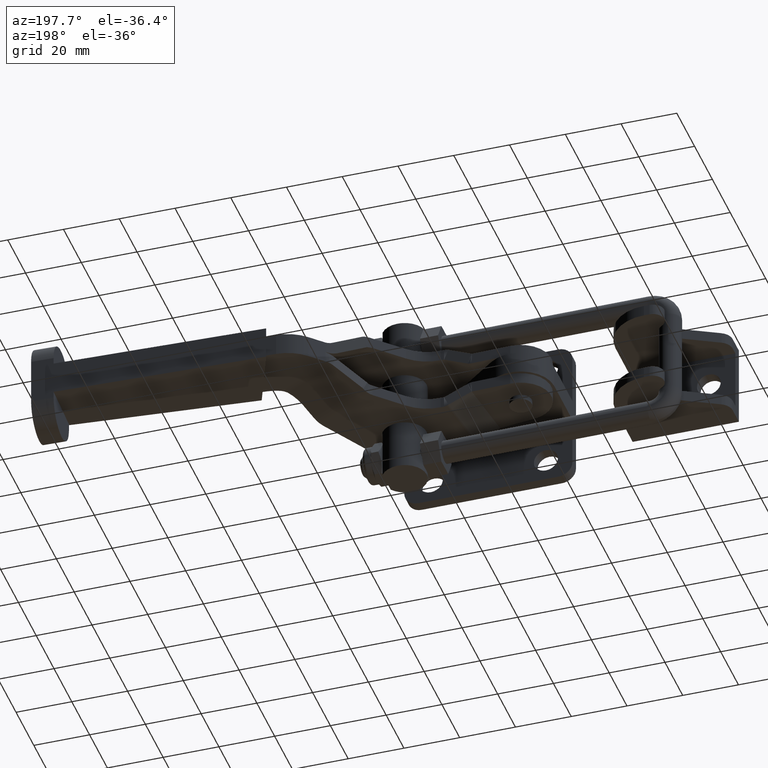
[diagram: clean part render]
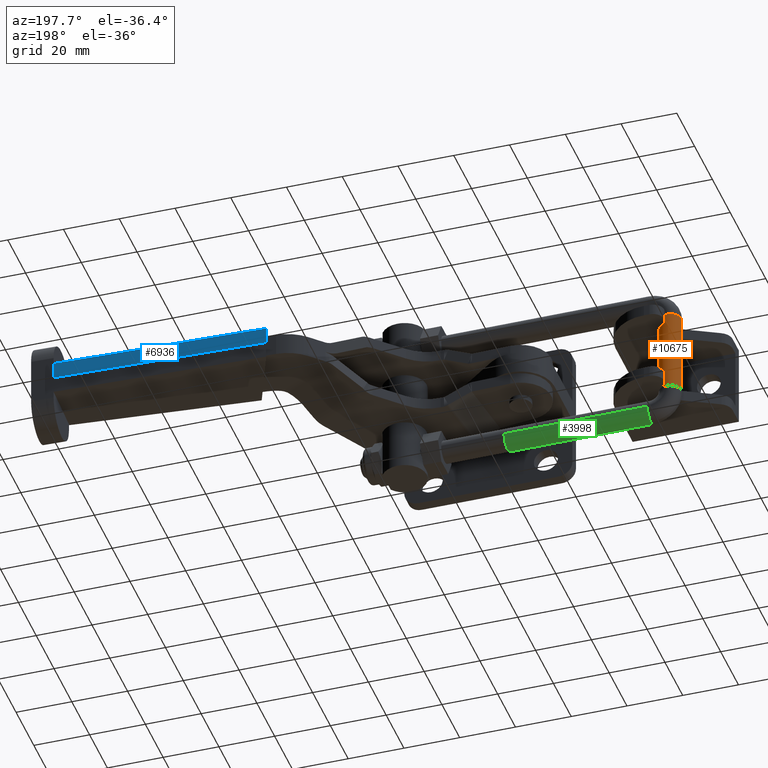
[diagram: same view with three faces highlighted in distinct colors, each labeled with its STEP entity id]
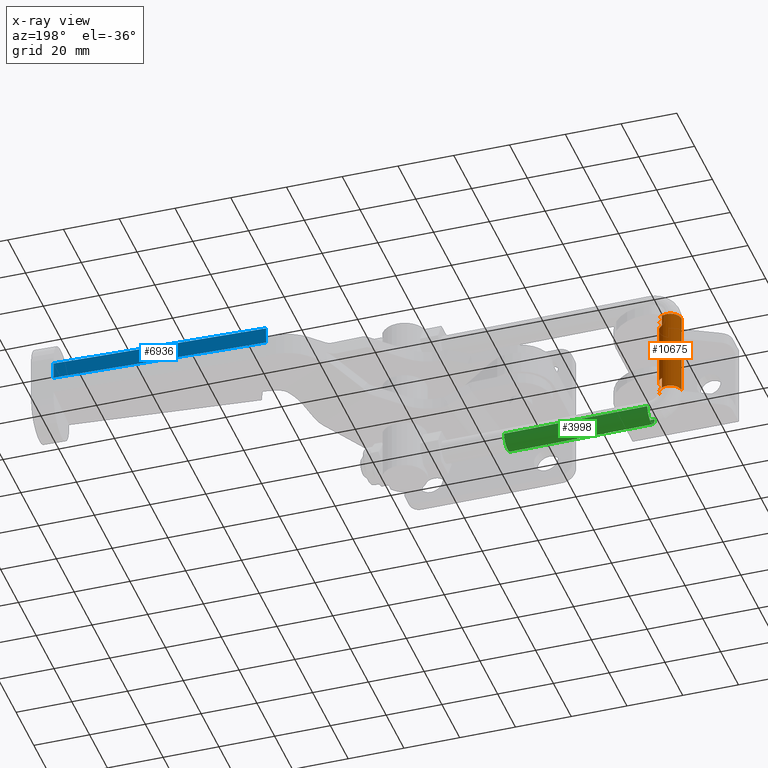
[diagram: x-ray of the same camera — body ghosted, the three highlighted faces saturated]
A machine part, auxiliary view with three faces highlighted in distinct colors.
The next image is the same camera in x-ray (body ghosted, the three faces saturated) — at least one of them is partly hidden behind the body in this view.
Their STEP definitions:

[orange] entity #10675 — the highlighted cylindrical surface (edge-blend (fillet) strip) has radius 4 mm, axis along (-0, 0, -1).
#129 = AXIS2_PLACEMENT_3D ( 'NONE', #6825, #1714, #7698 ) ;
#419 = CARTESIAN_POINT ( 'NONE',  ( -37.34735007127072500, 23.33114463887526600, -15.10000000000000000 ) ) ;
#1223 = VERTEX_POINT ( 'NONE', #10134 ) ;
#1245 = AXIS2_PLACEMENT_3D ( 'NONE', #9506, #4336, #10387 ) ;
#1280 = CARTESIAN_POINT ( 'NONE',  ( -45.34726118961603400, 23.36885536112467000, -15.24999999999999500 ) ) ;
#1493 = CARTESIAN_POINT ( 'NONE',  ( -37.34735007127056900, 23.33114463887526600, 15.25000000000001200 ) ) ;
#1507 = CIRCLE ( 'NONE', #2867, 4.000000000000003600 ) ;
#1682 = CARTESIAN_POINT ( 'NONE',  ( -37.34735007127072500, 23.33114463887526600, -11.10000000000000100 ) ) ;
#1714 = DIRECTION ( 'NONE',  ( 9.492765034231074300E-016, -6.755866105874848700E-018, 1.000000000000000000 ) ) ;
#1910 = VECTOR ( 'NONE', #10227, 1000.000000000000000 ) ;
#1942 = DIRECTION ( 'NONE',  ( 1.222089682935848900E-032, 9.802522302627077600E-017, 1.000000000000000000 ) ) ;
#2062 = CARTESIAN_POINT ( 'NONE',  ( -41.34730563044346500, 23.34999999999999800, -15.10000000000000000 ) ) ;
#2127 = DIRECTION ( 'NONE',  ( -0.0000000000000000000, -0.0000000000000000000, -1.000000000000000000 ) ) ;
#2140 = CARTESIAN_POINT ( 'NONE',  ( -37.34735007127056900, 23.33114463887526600, 15.25000000000001200 ) ) ;
#2198 = ORIENTED_EDGE ( 'NONE', *, *, #5491, .F. ) ;
#2284 = EDGE_CURVE ( 'NONE', #7064, #10743, #7619, .T. ) ;
#2331 = DIRECTION ( 'NONE',  ( -2.831406573256059800E-017, 2.414548036698167000E-018, -1.000000000000000000 ) ) ;
#2442 = CARTESIAN_POINT ( 'NONE',  ( -45.34726118961603400, 23.36885536112467000, 15.25000000000001600 ) ) ;
#2529 = CARTESIAN_POINT ( 'NONE',  ( -37.34735007127056900, 23.33114463887526600, 15.25000000000000900 ) ) ;
#2530 = FACE_OUTER_BOUND ( 'NONE', #6085, .T. ) ;
#2833 = ORIENTED_EDGE ( 'NONE', *, *, #3964, .T. ) ;
#2858 = CARTESIAN_POINT ( 'NONE',  ( -41.34730563044330200, 23.34999999999996900, 15.25000000000001200 ) ) ;
#2866 = CARTESIAN_POINT ( 'NONE',  ( -45.34726118961603400, 23.36885536112467000, 15.25000000000001200 ) ) ;
#2867 = AXIS2_PLACEMENT_3D ( 'NONE', #2062, #8052, #2902 ) ;
#2870 = VECTOR ( 'NONE', #9869, 1000.000000000000000 ) ;
#2902 = DIRECTION ( 'NONE',  ( 1.000000000000000000, 0.0000000000000000000, 0.0000000000000000000 ) ) ;
#2999 = EDGE_CURVE ( 'NONE', #7756, #1223, #6787, .T. ) ;
#3146 = AXIS2_PLACEMENT_3D ( 'NONE', #2858, #8887, #6313 ) ;
#3223 = VERTEX_POINT ( 'NONE', #7805 ) ;
#3662 = LINE ( 'NONE', #7261, #8228 ) ;
#3964 = EDGE_CURVE ( 'NONE', #4927, #7838, #7709, .T. ) ;
#4053 = CARTESIAN_POINT ( 'NONE',  ( -41.34730563044346500, 23.34999999999999800, 11.09999999999999800 ) ) ;
#4088 = DIRECTION ( 'NONE',  ( 9.492765034231074300E-016, -6.755866105874848700E-018, 1.000000000000000000 ) ) ;
#4184 = ORIENTED_EDGE ( 'NONE', *, *, #10252, .T. ) ;
#4239 = ORIENTED_EDGE ( 'NONE', *, *, #8446, .T. ) ;
#4243 = VECTOR ( 'NONE', #5260, 1000.000000000000000 ) ;
#4336 = DIRECTION ( 'NONE',  ( -0.0000000000000000000, -0.0000000000000000000, -1.000000000000000000 ) ) ;
#4381 = CARTESIAN_POINT ( 'NONE',  ( -39.32392135815571500, 26.80049504950501000, 15.10000000000000000 ) ) ;
#4433 = AXIS2_PLACEMENT_3D ( 'NONE', #7060, #1942, #7924 ) ;
#4528 = CYLINDRICAL_SURFACE ( 'NONE', #3146, 4.000000000000001800 ) ;
#4690 = EDGE_CURVE ( 'NONE', #3223, #4917, #3662, .T. ) ;
#4722 = CIRCLE ( 'NONE', #129, 4.000000000000001800 ) ;
#4895 = ORIENTED_EDGE ( 'NONE', *, *, #9237, .T. ) ;
#4917 = VERTEX_POINT ( 'NONE', #10256 ) ;
#4923 = DIRECTION ( 'NONE',  ( -1.734723475976807100E-015, -1.000000000000000000, 0.0000000000000000000 ) ) ;
#4927 = VERTEX_POINT ( 'NONE', #2529 ) ;
#5046 = ORIENTED_EDGE ( 'NONE', *, *, #4690, .T. ) ;
#5260 = DIRECTION ( 'NONE',  ( -0.0000000000000000000, -0.0000000000000000000, -1.000000000000000000 ) ) ;
#5334 = ORIENTED_EDGE ( 'NONE', *, *, #5415, .F. ) ;
#5415 = EDGE_CURVE ( 'NONE', #4927, #7064, #4722, .T. ) ;
#5491 = EDGE_CURVE ( 'NONE', #3223, #7838, #6190, .T. ) ;
#5928 = EDGE_CURVE ( 'NONE', #8933, #7120, #11032, .T. ) ;
#6085 = EDGE_LOOP ( 'NONE', ( #10229, #5334, #2833, #2198, #5046, #4184, #8391, #4895, #10612, #9618, #8290, #4239 ) ) ;
#6190 = CIRCLE ( 'NONE', #1245, 4.000000000000003600 ) ;
#6207 = EDGE_CURVE ( 'NONE', #6603, #7756, #1507, .T. ) ;
#6313 = DIRECTION ( 'NONE',  ( 0.9999888897931834600, -0.004713840281175307400, 0.0000000000000000000 ) ) ;
#6513 = LINE ( 'NONE', #4381, #4243 ) ;
#6555 = VERTEX_POINT ( 'NONE', #7669 ) ;
#6603 = VERTEX_POINT ( 'NONE', #8656 ) ;
#6772 = CARTESIAN_POINT ( 'NONE',  ( -37.34735007127056900, 23.33114463887526600, 15.25000000000001200 ) ) ;
#6787 = LINE ( 'NONE', #1493, #8820 ) ;
#6825 = CARTESIAN_POINT ( 'NONE',  ( -41.34730563044330200, 23.34999999999996900, 15.25000000000001200 ) ) ;
#7060 = CARTESIAN_POINT ( 'NONE',  ( -41.34730563044346500, 23.34999999999999800, -11.10000000000000100 ) ) ;
#7064 = VERTEX_POINT ( 'NONE', #2442 ) ;
#7120 = VERTEX_POINT ( 'NONE', #1682 ) ;
#7132 = CIRCLE ( 'NONE', #9760, 4.000000000000001800 ) ;
#7261 = CARTESIAN_POINT ( 'NONE',  ( -39.32392135815571500, 26.80049504950501000, 15.10000000000000000 ) ) ;
#7619 = LINE ( 'NONE', #2866, #8842 ) ;
#7669 = CARTESIAN_POINT ( 'NONE',  ( -39.32392135815565800, 26.80049504950497400, -11.10000000000000000 ) ) ;
#7698 = DIRECTION ( 'NONE',  ( 0.004713840281174440000, 0.9999888897931834600, 0.0000000000000000000 ) ) ;
#7709 = LINE ( 'NONE', #2140, #2870 ) ;
#7754 = CIRCLE ( 'NONE', #9341, 4.000000000000000000 ) ;
#7756 = VERTEX_POINT ( 'NONE', #419 ) ;
#7805 = CARTESIAN_POINT ( 'NONE',  ( -39.32392135815571500, 26.80049504950501000, 15.10000000000000000 ) ) ;
#7838 = VERTEX_POINT ( 'NONE', #9057 ) ;
#7924 = DIRECTION ( 'NONE',  ( 0.0000000000000000000, 1.000000000000000000, 0.0000000000000000000 ) ) ;
#8013 = DIRECTION ( 'NONE',  ( -2.831406573256059800E-017, 2.414548036698167000E-018, -1.000000000000000000 ) ) ;
#8052 = DIRECTION ( 'NONE',  ( -0.0000000000000000000, -0.0000000000000000000, -1.000000000000000000 ) ) ;
#8228 = VECTOR ( 'NONE', #2127, 1000.000000000000000 ) ;
#8290 = ORIENTED_EDGE ( 'NONE', *, *, #2999, .T. ) ;
#8391 = ORIENTED_EDGE ( 'NONE', *, *, #5928, .T. ) ;
#8446 = EDGE_CURVE ( 'NONE', #1223, #10743, #7132, .T. ) ;
#8656 = CARTESIAN_POINT ( 'NONE',  ( -39.32392135815571500, 26.80049504950501000, -15.10000000000000000 ) ) ;
#8820 = VECTOR ( 'NONE', #2331, 1000.000000000000000 ) ;
#8842 = VECTOR ( 'NONE', #8013, 1000.000000000000000 ) ;
#8887 = DIRECTION ( 'NONE',  ( -2.831406573256059800E-017, 2.414548036698167000E-018, -1.000000000000000000 ) ) ;
#8933 = VERTEX_POINT ( 'NONE', #10804 ) ;
#9057 = CARTESIAN_POINT ( 'NONE',  ( -37.34735007127072500, 23.33114463887526600, 15.10000000000000000 ) ) ;
#9123 = CIRCLE ( 'NONE', #4433, 4.000000000000000000 ) ;
#9237 = EDGE_CURVE ( 'NONE', #7120, #6555, #9123, .T. ) ;
#9263 = CARTESIAN_POINT ( 'NONE',  ( -41.34730563044330200, 23.34999999999996900, -15.24999999999999800 ) ) ;
#9341 = AXIS2_PLACEMENT_3D ( 'NONE', #4053, #10098, #4923 ) ;
#9506 = CARTESIAN_POINT ( 'NONE',  ( -41.34730563044346500, 23.34999999999999800, 15.10000000000000000 ) ) ;
#9618 = ORIENTED_EDGE ( 'NONE', *, *, #6207, .T. ) ;
#9760 = AXIS2_PLACEMENT_3D ( 'NONE', #9263, #4088, #10142 ) ;
#9869 = DIRECTION ( 'NONE',  ( -2.831406573256059800E-017, 2.414548036698167000E-018, -1.000000000000000000 ) ) ;
#10098 = DIRECTION ( 'NONE',  ( 1.222089682935848900E-032, 9.802522302627077600E-017, -1.000000000000000000 ) ) ;
#10134 = CARTESIAN_POINT ( 'NONE',  ( -37.34735007127056900, 23.33114463887526600, -15.25000000000000200 ) ) ;
#10142 = DIRECTION ( 'NONE',  ( 0.004713840281174440000, 0.9999888897931834600, 0.0000000000000000000 ) ) ;
#10227 = DIRECTION ( 'NONE',  ( -2.831406573256059800E-017, 2.414548036698167000E-018, -1.000000000000000000 ) ) ;
#10229 = ORIENTED_EDGE ( 'NONE', *, *, #2284, .F. ) ;
#10252 = EDGE_CURVE ( 'NONE', #4917, #8933, #7754, .T. ) ;
#10256 = CARTESIAN_POINT ( 'NONE',  ( -39.32392135815571500, 26.80049504950501000, 11.09999999999999800 ) ) ;
#10387 = DIRECTION ( 'NONE',  ( 1.000000000000000000, 0.0000000000000000000, 0.0000000000000000000 ) ) ;
#10612 = ORIENTED_EDGE ( 'NONE', *, *, #11051, .T. ) ;
#10675 = ADVANCED_FACE ( 'NONE', ( #2530 ), #4528, .T. ) ;
#10743 = VERTEX_POINT ( 'NONE', #1280 ) ;
#10804 = CARTESIAN_POINT ( 'NONE',  ( -37.34735007127072500, 23.33114463887526600, 11.09999999999999800 ) ) ;
#11032 = LINE ( 'NONE', #6772, #1910 ) ;
#11051 = EDGE_CURVE ( 'NONE', #6555, #6603, #6513, .T. ) ;

[blue] entity #6936 — the highlighted planar face has unit normal (-0.0368, 0.9993, 0).
#237 = EDGE_CURVE ( 'NONE', #7831, #5841, #2298, .T. ) ;
#321 = CARTESIAN_POINT ( 'NONE',  ( 163.1678279870139600, 75.84910838456589500, -1.994931997373328200E-014 ) ) ;
#444 = EDGE_CURVE ( 'NONE', #4061, #5841, #8193, .T. ) ;
#604 = CARTESIAN_POINT ( 'NONE',  ( 165.1564824588969000, 75.92231151791294500, 0.0000000000000000000 ) ) ;
#635 = DIRECTION ( 'NONE',  ( -0.9993231855781513600, -0.03678546949456709700, 1.504273319548472600E-019 ) ) ;
#835 = VERTEX_POINT ( 'NONE', #321 ) ;
#1382 = VECTOR ( 'NONE', #635, 1000.000000000000100 ) ;
#1445 = LINE ( 'NONE', #7572, #10307 ) ;
#1458 = DIRECTION ( 'NONE',  ( -0.9993231855781513600, -0.03678546949456709000, 1.504273319548472400E-019 ) ) ;
#1597 = DIRECTION ( 'NONE',  ( -0.9993231855781513600, -0.03678546949456709700, 1.504273319548472600E-019 ) ) ;
#2298 = LINE ( 'NONE', #7109, #10893 ) ;
#2639 = ORIENTED_EDGE ( 'NONE', *, *, #237, .T. ) ;
#2700 = EDGE_LOOP ( 'NONE', ( #5102, #7570, #9293, #2639 ) ) ;
#2719 = DIRECTION ( 'NONE',  ( 1.510193535115224800E-019, -1.331529777845254300E-020, 1.000000000000000000 ) ) ;
#3032 = CARTESIAN_POINT ( 'NONE',  ( 87.80625752803861400, 73.07502009041962800, -2.775557561562891400E-014 ) ) ;
#3305 = EDGE_CURVE ( 'NONE', #4061, #835, #4364, .T. ) ;
#3522 = EDGE_CURVE ( 'NONE', #835, #7831, #1445, .T. ) ;
#4061 = VERTEX_POINT ( 'NONE', #10019 ) ;
#4364 = LINE ( 'NONE', #7091, #8680 ) ;
#4698 = FACE_OUTER_BOUND ( 'NONE', #2700, .T. ) ;
#5102 = ORIENTED_EDGE ( 'NONE', *, *, #444, .F. ) ;
#5841 = VERTEX_POINT ( 'NONE', #8394 ) ;
#6543 = DIRECTION ( 'NONE',  ( -0.03678546949456709000, 0.9993231855781513600, 1.886160361457237000E-020 ) ) ;
#6594 = CARTESIAN_POINT ( 'NONE',  ( 165.1564824588969000, 75.92231151791294500, 6.000000000000000000 ) ) ;
#6936 = ADVANCED_FACE ( 'NONE', ( #4698 ), #7389, .T. ) ;
#7091 = CARTESIAN_POINT ( 'NONE',  ( 163.1678279870139600, 75.84910838456589500, -6.938893903907228400E-015 ) ) ;
#7109 = CARTESIAN_POINT ( 'NONE',  ( 87.80625752803861400, 73.07502009041962800, 0.0000000000000000000 ) ) ;
#7389 = PLANE ( 'NONE',  #10110 ) ;
#7570 = ORIENTED_EDGE ( 'NONE', *, *, #3305, .T. ) ;
#7572 = CARTESIAN_POINT ( 'NONE',  ( 165.1564824588969000, 75.92231151791294500, 0.0000000000000000000 ) ) ;
#7831 = VERTEX_POINT ( 'NONE', #3032 ) ;
#8193 = LINE ( 'NONE', #6594, #1382 ) ;
#8394 = CARTESIAN_POINT ( 'NONE',  ( 87.80625752803861400, 73.07502009041962800, 6.000000000000000000 ) ) ;
#8680 = VECTOR ( 'NONE', #8826, 1000.000000000000000 ) ;
#8826 = DIRECTION ( 'NONE',  ( 3.628996044680723100E-015, 1.336036097510123600E-016, -1.000000000000000000 ) ) ;
#9293 = ORIENTED_EDGE ( 'NONE', *, *, #3522, .T. ) ;
#10019 = CARTESIAN_POINT ( 'NONE',  ( 163.1678279870139100, 75.84910838456589500, 6.000000000000000000 ) ) ;
#10110 = AXIS2_PLACEMENT_3D ( 'NONE', #604, #6543, #1458 ) ;
#10307 = VECTOR ( 'NONE', #1597, 1000.000000000000100 ) ;
#10893 = VECTOR ( 'NONE', #2719, 1000.000000000000000 ) ;

[green] entity #3998 — the highlighted cylindrical surface (edge-blend (fillet) strip) has radius 4 mm, axis along (1, -0.0047, 0).
#135 = CARTESIAN_POINT ( 'NONE',  ( 17.13318906133323700, 19.07428478437847700, -22.24999999999999300 ) ) ;
#149 = DIRECTION ( 'NONE',  ( -0.9999888897931835700, 0.004713840281175277900, 1.676664013097943700E-015 ) ) ;
#228 = CARTESIAN_POINT ( 'NONE',  ( -34.32852804076631500, 27.31695867720447500, -22.24999999999999300 ) ) ;
#463 = AXIS2_PLACEMENT_3D ( 'NONE', #5226, #149, #6083 ) ;
#490 = DIRECTION ( 'NONE',  ( 0.9999888897931835700, -0.004713840281175277900, 1.129012920103786900E-019 ) ) ;
#719 = CARTESIAN_POINT ( 'NONE',  ( -34.36623876301571600, 19.31704755885900600, -22.24999999999999300 ) ) ;
#817 = VERTEX_POINT ( 'NONE', #6299 ) ;
#880 = DIRECTION ( 'NONE',  ( 0.9999888897931833400, -0.004713840281175277000, 1.129012920103786600E-019 ) ) ;
#1292 = AXIS2_PLACEMENT_3D ( 'NONE', #2863, #8892, #3728 ) ;
#1536 = LINE ( 'NONE', #3849, #3248 ) ;
#1899 = EDGE_LOOP ( 'NONE', ( #3639, #2547, #9102, #2047, #8229 ) ) ;
#2047 = ORIENTED_EDGE ( 'NONE', *, *, #8531, .T. ) ;
#2547 = ORIENTED_EDGE ( 'NONE', *, *, #5212, .F. ) ;
#2606 = FACE_OUTER_BOUND ( 'NONE', #1899, .T. ) ;
#2863 = CARTESIAN_POINT ( 'NONE',  ( 17.15204442245794100, 23.07424034355121400, -22.24999999999999300 ) ) ;
#3083 = CIRCLE ( 'NONE', #463, 4.000000000000001800 ) ;
#3248 = VECTOR ( 'NONE', #10749, 1000.000000000000200 ) ;
#3498 = VECTOR ( 'NONE', #880, 1000.000000000000200 ) ;
#3639 = ORIENTED_EDGE ( 'NONE', *, *, #7800, .F. ) ;
#3728 = DIRECTION ( 'NONE',  ( 0.0000000000000000000, 0.0000000000000000000, 1.000000000000000000 ) ) ;
#3849 = CARTESIAN_POINT ( 'NONE',  ( -34.36623876301571600, 19.31704755885900600, -22.24999999999999300 ) ) ;
#3874 = CARTESIAN_POINT ( 'NONE',  ( -34.34738340189101500, 23.31700311803173900, -22.24999999999999300 ) ) ;
#3998 = ADVANCED_FACE ( 'NONE', ( #2606 ), #6906, .T. ) ;
#4834 = DIRECTION ( 'NONE',  ( -0.9999888897931835700, 0.004713840281175277900, 1.676664013097943700E-015 ) ) ;
#4866 = AXIS2_PLACEMENT_3D ( 'NONE', #10006, #4834, #10860 ) ;
#5212 = EDGE_CURVE ( 'NONE', #817, #7457, #8345, .T. ) ;
#5226 = CARTESIAN_POINT ( 'NONE',  ( -34.34738340189101500, 23.31700311803173900, -22.24999999999999300 ) ) ;
#6083 = DIRECTION ( 'NONE',  ( 0.004713840281174440000, 0.9999888897931834600, 0.0000000000000000000 ) ) ;
#6125 = VERTEX_POINT ( 'NONE', #228 ) ;
#6258 = CARTESIAN_POINT ( 'NONE',  ( 17.17089978358264800, 27.07419590272394700, -22.24999999999999300 ) ) ;
#6299 = CARTESIAN_POINT ( 'NONE',  ( -34.34738340189103000, 23.31700311803173900, -26.24999999999999600 ) ) ;
#6439 = CIRCLE ( 'NONE', #1292, 4.000000000000000000 ) ;
#6731 = VERTEX_POINT ( 'NONE', #6258 ) ;
#6906 = CYLINDRICAL_SURFACE ( 'NONE', #9630, 4.000000000000001800 ) ;
#7457 = VERTEX_POINT ( 'NONE', #719 ) ;
#7684 = CARTESIAN_POINT ( 'NONE',  ( -34.32852804076631500, 27.31695867720447500, -22.24999999999999300 ) ) ;
#7800 = EDGE_CURVE ( 'NONE', #7457, #9889, #1536, .T. ) ;
#8229 = ORIENTED_EDGE ( 'NONE', *, *, #8758, .F. ) ;
#8345 = CIRCLE ( 'NONE', #4866, 4.000000000000001800 ) ;
#8531 = EDGE_CURVE ( 'NONE', #6125, #6731, #10101, .T. ) ;
#8758 = EDGE_CURVE ( 'NONE', #9889, #6731, #6439, .T. ) ;
#8892 = DIRECTION ( 'NONE',  ( 0.9999888897931835700, -0.004713840281175277900, 1.518632690507927800E-016 ) ) ;
#9047 = DIRECTION ( 'NONE',  ( 0.004713840281174440000, 0.9999888897931834600, 0.0000000000000000000 ) ) ;
#9102 = ORIENTED_EDGE ( 'NONE', *, *, #9163, .F. ) ;
#9163 = EDGE_CURVE ( 'NONE', #6125, #817, #3083, .T. ) ;
#9630 = AXIS2_PLACEMENT_3D ( 'NONE', #3874, #490, #9047 ) ;
#9889 = VERTEX_POINT ( 'NONE', #135 ) ;
#10006 = CARTESIAN_POINT ( 'NONE',  ( -34.34738340189101500, 23.31700311803173900, -22.24999999999999300 ) ) ;
#10101 = LINE ( 'NONE', #7684, #3498 ) ;
#10749 = DIRECTION ( 'NONE',  ( 0.9999888897931833400, -0.004713840281175277000, 1.129012920103786600E-019 ) ) ;
#10860 = DIRECTION ( 'NONE',  ( 0.004713840281174440000, 0.9999888897931834600, 0.0000000000000000000 ) ) ;